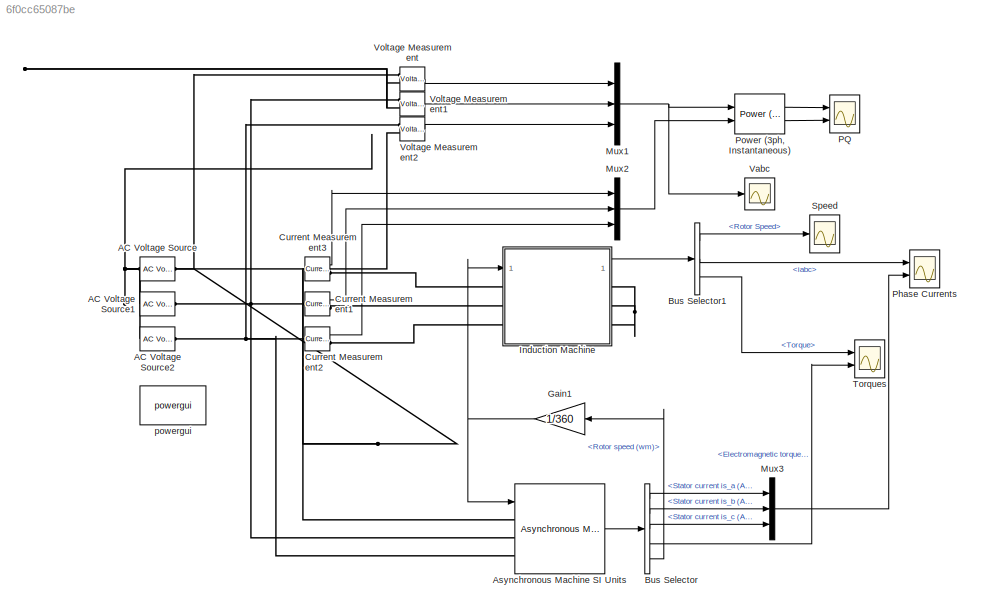
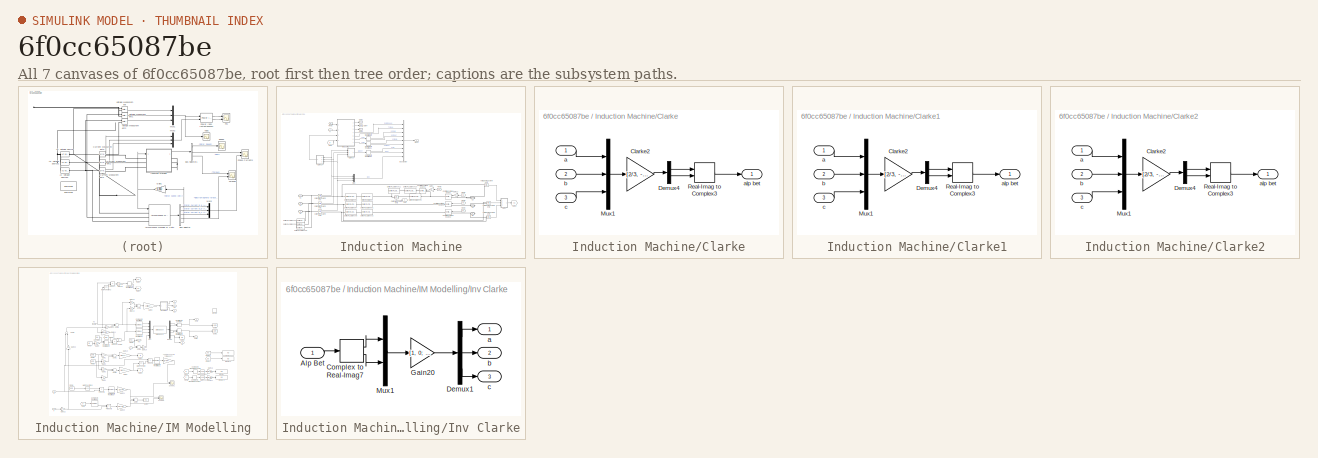
[diagram: thumbnail index - all 7 canvases of the model, root first then tree order]
MODEL slx_6f0cc65087be
KIND model
CONFIG AbsTol = auto
CONFIG FixedStep = 2e-6
CONFIG MaxStep = 2e-6
CONFIG MinStep = auto
CONFIG RelTol = 1e-6
CONFIG SampleTimeConstraint = Unconstrained
CONFIG Solver = VariableStepAuto
CONFIG SolverMode = Auto
CONFIG SolverName = VariableStepAuto
CONFIG StartTime = 0.0
CONFIG StopTime = 1.5
BLOCK [Reference] AC Voltage Source  REF=powerlib/Electrical
Sources/AC Voltage Source
  Ports = [0, 0, 0, 0, 0, 1, 1]
  SourceBlock = powerlib/Electrical\nSources/AC Voltage Source
  SourceType = AC Voltage Source
BLOCK [Reference] AC Voltage Source1  REF=powerlib/Electrical
Sources/AC Voltage Source
  Ports = [0, 0, 0, 0, 0, 1, 1]
  SourceBlock = powerlib/Electrical\nSources/AC Voltage Source
  SourceType = AC Voltage Source
BLOCK [Reference] AC Voltage Source2  REF=powerlib/Electrical
Sources/AC Voltage Source
  Ports = [0, 0, 0, 0, 0, 1, 1]
  SourceBlock = powerlib/Electrical\nSources/AC Voltage Source
  SourceType = AC Voltage Source
BLOCK [Reference] Asynchronous Machine SI Units  REF=powerlib/Machines/Asynchronous Machine
SI Units
  Ports = [1, 1, 0, 0, 0, 3]
  SourceBlock = powerlib/Machines/Asynchronous Machine\nSI Units
  SourceType = Asynchronous Machine
BLOCK [BusSelector] Bus Selector
  OutputSignals = Stator measurements.Stator current is_a (A),Stator measurements.Stator current is_b (A),Stator measurements.Stator current is_c (A),Mechanical.Electromagnetic torque Te (N*m),Mechanical.Rotor speed (wm)
  Ports = [1, 5]
BLOCK [BusSelector] Bus Selector1
  OutputSignals = Rotor Speed,iabc,Torque
  Ports = [1, 3]
BLOCK [Reference] Current Measurement1  REF=powerlib/Measurements/Current Measurement
  Ports = [0, 1, 0, 0, 0, 1, 1]
  SourceBlock = powerlib/Measurements/Current Measurement
  SourceType = Current Measurement
BLOCK [Reference] Current Measurement2  REF=powerlib/Measurements/Current Measurement
  Ports = [0, 1, 0, 0, 0, 1, 1]
  SourceBlock = powerlib/Measurements/Current Measurement
  SourceType = Current Measurement
BLOCK [Reference] Current Measurement3  REF=powerlib/Measurements/Current Measurement
  Ports = [0, 1, 0, 0, 0, 1, 1]
  SourceBlock = powerlib/Measurements/Current Measurement
  SourceType = Current Measurement
BLOCK [Gain] Gain1
  Gain = 1/360
  OutDataTypeStr = Inherit: Inherit via internal rule
  ParamDataTypeStr = Inherit: Inherit via internal rule
  SaturateOnIntegerOverflow = off
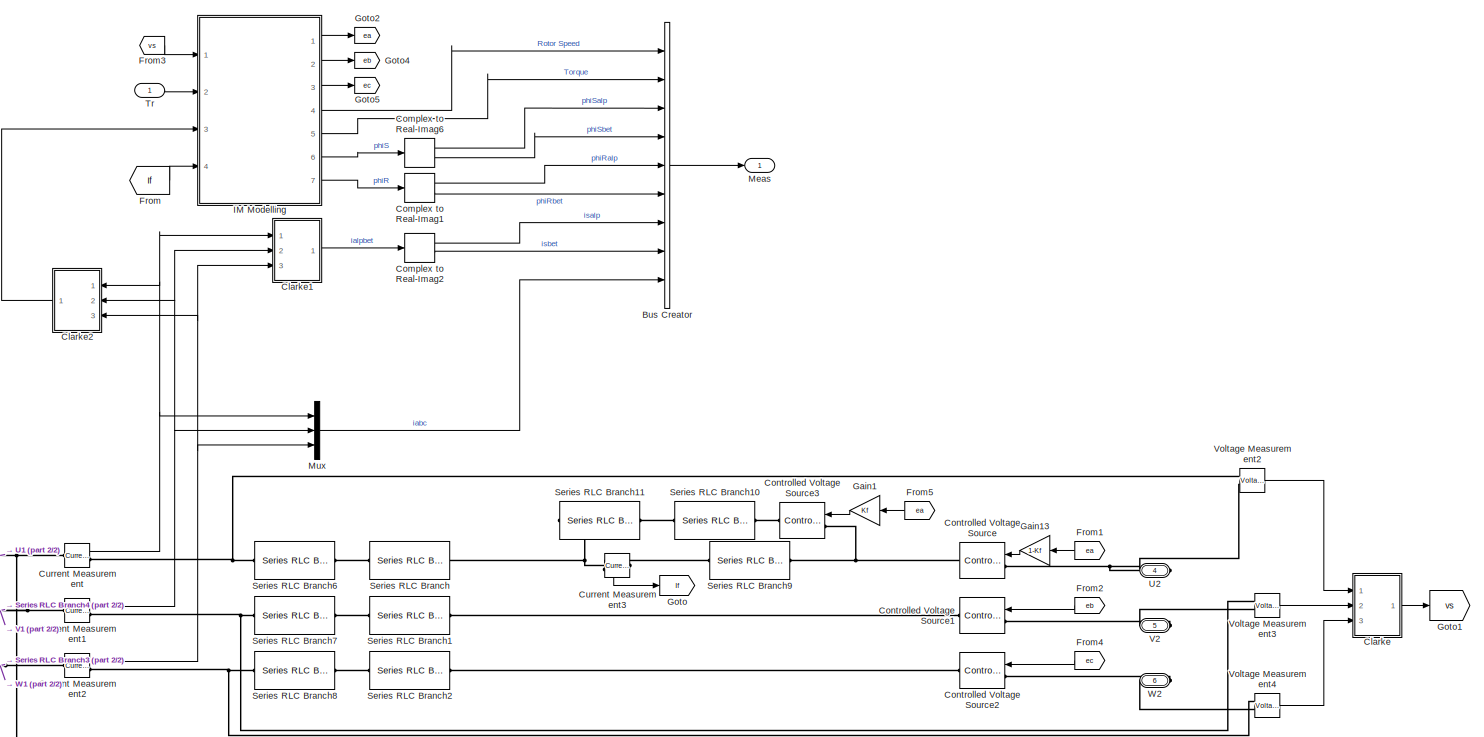
[diagram: Induction Machine - part 1/2, most of the canvas]
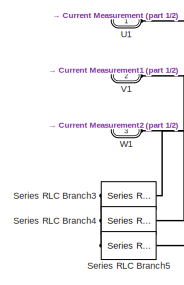
[diagram: Induction Machine - part 2/2, bottom left region]
BLOCK [SubSystem] Induction Machine
  Ports = [1, 1, 0, 0, 0, 3, 3]
  RequestExecContextInheritance = off
  Variant = off
BLOCK [BusCreator] Induction Machine/Bus Creator
  DisplayOption = bar
  InheritFromInputs = on
  Inputs = 9
  Ports = [9, 1]
BLOCK [SubSystem] Induction Machine/Clarke
  Ports = [3, 1]
  RequestExecContextInheritance = off
  Variant = off
BLOCK [Gain] Induction Machine/Clarke/Clarke2
  Gain = [2/3, -1/3, -1/3; 0, sqrt(3)/3, -sqrt(3)/3 ]
  Multiplication = Matrix(K*u)
  OutDataTypeStr = Inherit: Inherit via internal rule
  ParamDataTypeStr = Inherit: Inherit via internal rule
  SaturateOnIntegerOverflow = off
BLOCK [Demux] Induction Machine/Clarke/Demux4
  DisplayOption = bar
  Outputs = 2
  Ports = [1, 2]
BLOCK [Mux] Induction Machine/Clarke/Mux1
  DisplayOption = bar
  Inputs = 3
  Ports = [3, 1]
BLOCK [RealImagToComplex] Induction Machine/Clarke/Real-Imag to Complex3
  Ports = [2, 1]
BLOCK [Inport] Induction Machine/Clarke/a
  IconDisplay = Port number
BLOCK [Outport] Induction Machine/Clarke/alp bet
  IconDisplay = Port number
BLOCK [Inport] Induction Machine/Clarke/b
  IconDisplay = Port number
  Port = 2
BLOCK [Inport] Induction Machine/Clarke/c
  IconDisplay = Port number
  Port = 3
BLOCK [SubSystem] Induction Machine/Clarke1
  Ports = [3, 1]
  RequestExecContextInheritance = off
  Variant = off
BLOCK [Gain] Induction Machine/Clarke1/Clarke2
  Gain = [2/3, -1/3, -1/3; 0, sqrt(3)/3, -sqrt(3)/3 ]
  Multiplication = Matrix(K*u)
  OutDataTypeStr = Inherit: Inherit via internal rule
  ParamDataTypeStr = Inherit: Inherit via internal rule
  SaturateOnIntegerOverflow = off
BLOCK [Demux] Induction Machine/Clarke1/Demux4
  DisplayOption = bar
  Outputs = 2
  Ports = [1, 2]
BLOCK [Mux] Induction Machine/Clarke1/Mux1
  DisplayOption = bar
  Inputs = 3
  Ports = [3, 1]
BLOCK [RealImagToComplex] Induction Machine/Clarke1/Real-Imag to Complex3
  Ports = [2, 1]
BLOCK [Inport] Induction Machine/Clarke1/a
  IconDisplay = Port number
BLOCK [Outport] Induction Machine/Clarke1/alp bet
  IconDisplay = Port number
BLOCK [Inport] Induction Machine/Clarke1/b
  IconDisplay = Port number
  Port = 2
BLOCK [Inport] Induction Machine/Clarke1/c
  IconDisplay = Port number
  Port = 3
BLOCK [SubSystem] Induction Machine/Clarke2
  Ports = [3, 1]
  RequestExecContextInheritance = off
  Variant = off
BLOCK [Gain] Induction Machine/Clarke2/Clarke2
  Gain = [2/3, -1/3, -1/3; 0, sqrt(3)/3, -sqrt(3)/3 ]
  Multiplication = Matrix(K*u)
  OutDataTypeStr = Inherit: Inherit via internal rule
  ParamDataTypeStr = Inherit: Inherit via internal rule
  SaturateOnIntegerOverflow = off
BLOCK [Demux] Induction Machine/Clarke2/Demux4
  DisplayOption = bar
  Outputs = 2
  Ports = [1, 2]
BLOCK [Mux] Induction Machine/Clarke2/Mux1
  DisplayOption = bar
  Inputs = 3
  Ports = [3, 1]
BLOCK [RealImagToComplex] Induction Machine/Clarke2/Real-Imag to Complex3
  Ports = [2, 1]
BLOCK [Inport] Induction Machine/Clarke2/a
  IconDisplay = Port number
BLOCK [Outport] Induction Machine/Clarke2/alp bet
  IconDisplay = Port number
BLOCK [Inport] Induction Machine/Clarke2/b
  IconDisplay = Port number
  Port = 2
BLOCK [Inport] Induction Machine/Clarke2/c
  IconDisplay = Port number
  Port = 3
BLOCK [ComplexToRealImag] Induction Machine/Complex to Real-Imag1
  Ports = [1, 2]
BLOCK [ComplexToRealImag] Induction Machine/Complex to Real-Imag2
  Ports = [1, 2]
BLOCK [ComplexToRealImag] Induction Machine/Complex to Real-Imag6
  Ports = [1, 2]
BLOCK [Reference] Induction Machine/Controlled Voltage Source  REF=powerlib/Electrical
Sources/Controlled Voltage Source
  Ports = [1, 0, 0, 0, 0, 1, 1]
  SourceBlock = powerlib/Electrical\nSources/Controlled Voltage Source
  SourceType = Controlled Voltage Source
BLOCK [Reference] Induction Machine/Controlled Voltage Source1  REF=powerlib/Electrical
Sources/Controlled Voltage Source
  Ports = [1, 0, 0, 0, 0, 1, 1]
  SourceBlock = powerlib/Electrical\nSources/Controlled Voltage Source
  SourceType = Controlled Voltage Source
BLOCK [Reference] Induction Machine/Controlled Voltage Source2  REF=powerlib/Electrical
Sources/Controlled Voltage Source
  Ports = [1, 0, 0, 0, 0, 1, 1]
  SourceBlock = powerlib/Electrical\nSources/Controlled Voltage Source
  SourceType = Controlled Voltage Source
BLOCK [Reference] Induction Machine/Controlled Voltage Source3  REF=powerlib/Electrical
Sources/Controlled Voltage Source
  Ports = [1, 0, 0, 0, 0, 1, 1]
  SourceBlock = powerlib/Electrical\nSources/Controlled Voltage Source
  SourceType = Controlled Voltage Source
BLOCK [Reference] Induction Machine/Current Measurement  REF=powerlib/Measurements/Current Measurement
  Ports = [0, 1, 0, 0, 0, 1, 1]
  SourceBlock = powerlib/Measurements/Current Measurement
  SourceType = Current Measurement
BLOCK [Reference] Induction Machine/Current Measurement1  REF=powerlib/Measurements/Current Measurement
  Ports = [0, 1, 0, 0, 0, 1, 1]
  SourceBlock = powerlib/Measurements/Current Measurement
  SourceType = Current Measurement
BLOCK [Reference] Induction Machine/Current Measurement2  REF=powerlib/Measurements/Current Measurement
  Ports = [0, 1, 0, 0, 0, 1, 1]
  SourceBlock = powerlib/Measurements/Current Measurement
  SourceType = Current Measurement
BLOCK [Reference] Induction Machine/Current Measurement3  REF=powerlib/Measurements/Current Measurement
  Ports = [0, 1, 0, 0, 0, 1, 1]
  SourceBlock = powerlib/Measurements/Current Measurement
  SourceType = Current Measurement
BLOCK [From] Induction Machine/From
  GotoTag = If
BLOCK [From] Induction Machine/From1
  GotoTag = ea
BLOCK [From] Induction Machine/From2
  GotoTag = eb
BLOCK [From] Induction Machine/From3
  GotoTag = vs
BLOCK [From] Induction Machine/From4
  GotoTag = ec
BLOCK [From] Induction Machine/From5
  GotoTag = ea
BLOCK [Gain] Induction Machine/Gain1
  Gain = Kf
  OutDataTypeStr = Inherit: Inherit via internal rule
  ParamDataTypeStr = Inherit: Inherit via internal rule
  SaturateOnIntegerOverflow = off
BLOCK [Gain] Induction Machine/Gain13
  Gain = 1-Kf
  OutDataTypeStr = Inherit: Inherit via internal rule
  ParamDataTypeStr = Inherit: Inherit via internal rule
  SaturateOnIntegerOverflow = off
BLOCK [Goto] Induction Machine/Goto
  GotoTag = If
BLOCK [Goto] Induction Machine/Goto1
  GotoTag = vs
BLOCK [Goto] Induction Machine/Goto2
  GotoTag = ea
BLOCK [Goto] Induction Machine/Goto4
  GotoTag = eb
BLOCK [Goto] Induction Machine/Goto5
  GotoTag = ec
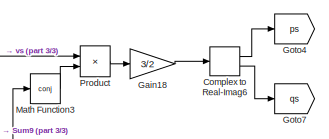
[diagram: Induction Machine/IM Modelling - part 1/3, top center region]
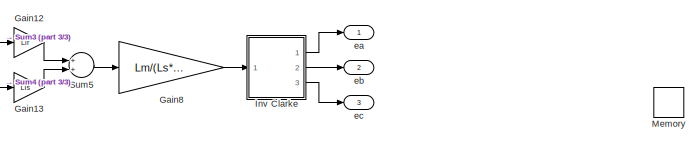
[diagram: Induction Machine/IM Modelling - part 2/3, top center region]
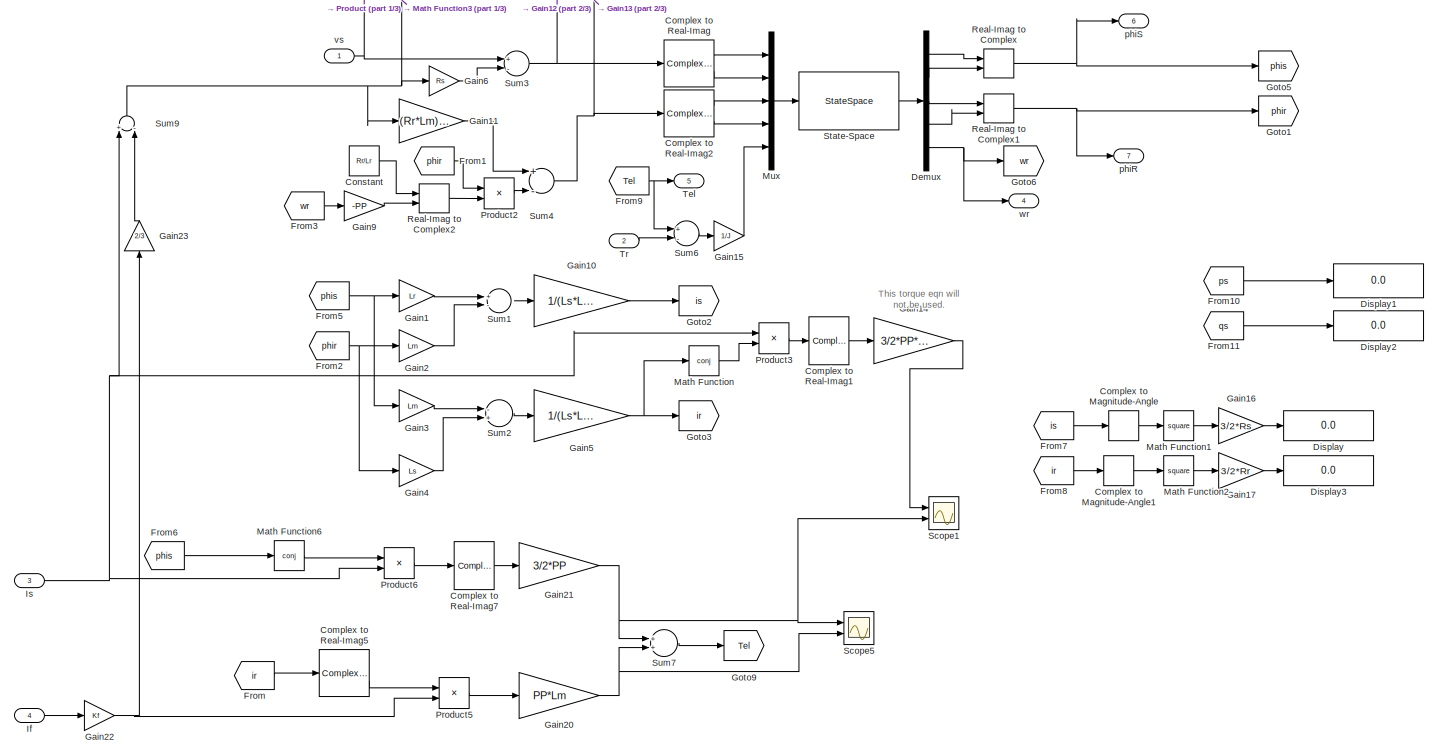
[diagram: Induction Machine/IM Modelling - part 3/3, full width, middle band]
BLOCK [SubSystem] Induction Machine/IM Modelling
  Ports = [4, 7]
  RequestExecContextInheritance = off
  Variant = off
BLOCK [ComplexToMagnitudeAngle] Induction Machine/IM Modelling/Complex to Magnitude-Angle
  Output = Magnitude
  Ports = [1, 1]
BLOCK [ComplexToMagnitudeAngle] Induction Machine/IM Modelling/Complex to Magnitude-Angle1
  Output = Magnitude
  Ports = [1, 1]
BLOCK [ComplexToRealImag] Induction Machine/IM Modelling/Complex to Real-Imag
  Ports = [1, 2]
BLOCK [ComplexToRealImag] Induction Machine/IM Modelling/Complex to Real-Imag1
  Output = Imag
  Ports = [1, 1]
BLOCK [ComplexToRealImag] Induction Machine/IM Modelling/Complex to Real-Imag2
  Ports = [1, 2]
BLOCK [ComplexToRealImag] Induction Machine/IM Modelling/Complex to Real-Imag5
  Ports = [1, 2]
BLOCK [ComplexToRealImag] Induction Machine/IM Modelling/Complex to Real-Imag6
  Ports = [1, 2]
BLOCK [ComplexToRealImag] Induction Machine/IM Modelling/Complex to Real-Imag7
  Output = Imag
  Ports = [1, 1]
BLOCK [Constant] Induction Machine/IM Modelling/Constant
  Value = Rr/Lr
BLOCK [Demux] Induction Machine/IM Modelling/Demux
  DisplayOption = bar
  Outputs = 5
  Ports = [1, 5]
BLOCK [Display] Induction Machine/IM Modelling/Display
  Decimation = 1
  Ports = [1]
BLOCK [Display] Induction Machine/IM Modelling/Display1
  Decimation = 1
  Format = long
  Ports = [1]
BLOCK [Display] Induction Machine/IM Modelling/Display2
  Decimation = 1
  Ports = [1]
BLOCK [Display] Induction Machine/IM Modelling/Display3
  Decimation = 1
  Ports = [1]
BLOCK [From] Induction Machine/IM Modelling/From
  GotoTag = ir
BLOCK [From] Induction Machine/IM Modelling/From1
  GotoTag = phir
BLOCK [From] Induction Machine/IM Modelling/From10
  GotoTag = ps
BLOCK [From] Induction Machine/IM Modelling/From11
  GotoTag = qs
BLOCK [From] Induction Machine/IM Modelling/From2
  GotoTag = phir
BLOCK [From] Induction Machine/IM Modelling/From3
  GotoTag = wr
BLOCK [From] Induction Machine/IM Modelling/From5
  GotoTag = phis
BLOCK [From] Induction Machine/IM Modelling/From6
  GotoTag = phis
BLOCK [From] Induction Machine/IM Modelling/From7
  GotoTag = is
BLOCK [From] Induction Machine/IM Modelling/From8
  GotoTag = ir
BLOCK [From] Induction Machine/IM Modelling/From9
  GotoTag = Tel
BLOCK [Gain] Induction Machine/IM Modelling/Gain1
  Gain = Lr
  OutDataTypeStr = Inherit: Inherit via internal rule
  ParamDataTypeStr = Inherit: Inherit via internal rule
  SaturateOnIntegerOverflow = off
BLOCK [Gain] Induction Machine/IM Modelling/Gain10
  Gain = 1/(Ls*Lr-Lm^2)
  OutDataTypeStr = Inherit: Inherit via internal rule
  ParamDataTypeStr = Inherit: Inherit via internal rule
  SaturateOnIntegerOverflow = off
BLOCK [Gain] Induction Machine/IM Modelling/Gain11
  Gain = (Rr*Lm)/Lr
  OutDataTypeStr = Inherit: Inherit via internal rule
  ParamDataTypeStr = Inherit: Inherit via internal rule
  SaturateOnIntegerOverflow = off
BLOCK [Gain] Induction Machine/IM Modelling/Gain12
  Gain = Llr
  OutDataTypeStr = Inherit: Inherit via internal rule
  ParamDataTypeStr = Inherit: Inherit via internal rule
  SaturateOnIntegerOverflow = off
BLOCK [Gain] Induction Machine/IM Modelling/Gain13
  Gain = Lls
  OutDataTypeStr = Inherit: Inherit via internal rule
  ParamDataTypeStr = Inherit: Inherit via internal rule
  SaturateOnIntegerOverflow = off
BLOCK [Gain] Induction Machine/IM Modelling/Gain14
  Gain = 3/2*PP*Lm
  OutDataTypeStr = Inherit: Inherit via internal rule
  ParamDataTypeStr = Inherit: Inherit via internal rule
  SaturateOnIntegerOverflow = off
BLOCK [Gain] Induction Machine/IM Modelling/Gain15
  Gain = 1/J
  OutDataTypeStr = Inherit: Inherit via internal rule
  ParamDataTypeStr = Inherit: Inherit via internal rule
  SaturateOnIntegerOverflow = off
BLOCK [Gain] Induction Machine/IM Modelling/Gain16
  Gain = 3/2*Rs
  OutDataTypeStr = Inherit: Inherit via internal rule
  ParamDataTypeStr = Inherit: Inherit via internal rule
  SaturateOnIntegerOverflow = off
BLOCK [Gain] Induction Machine/IM Modelling/Gain17
  Gain = 3/2*Rr
  OutDataTypeStr = Inherit: Inherit via internal rule
  ParamDataTypeStr = Inherit: Inherit via internal rule
  SaturateOnIntegerOverflow = off
BLOCK [Gain] Induction Machine/IM Modelling/Gain18
  Gain = 3/2
  OutDataTypeStr = Inherit: Inherit via internal rule
  ParamDataTypeStr = Inherit: Inherit via internal rule
  SaturateOnIntegerOverflow = off
BLOCK [Gain] Induction Machine/IM Modelling/Gain2
  Gain = Lm
  OutDataTypeStr = Inherit: Inherit via internal rule
  ParamDataTypeStr = Inherit: Inherit via internal rule
  SaturateOnIntegerOverflow = off
BLOCK [Gain] Induction Machine/IM Modelling/Gain20
  Gain = PP*Lm
  OutDataTypeStr = Inherit: Inherit via internal rule
  ParamDataTypeStr = Inherit: Inherit via internal rule
  SaturateOnIntegerOverflow = off
BLOCK [Gain] Induction Machine/IM Modelling/Gain21
  Gain = 3/2*PP
  OutDataTypeStr = Inherit: Inherit via internal rule
  ParamDataTypeStr = Inherit: Inherit via internal rule
  SaturateOnIntegerOverflow = off
BLOCK [Gain] Induction Machine/IM Modelling/Gain22
  Gain = Kf
  OutDataTypeStr = Inherit: Inherit via internal rule
  ParamDataTypeStr = Inherit: Inherit via internal rule
  SaturateOnIntegerOverflow = off
BLOCK [Gain] Induction Machine/IM Modelling/Gain23
  Gain = 2/3
  OutDataTypeStr = Inherit: Inherit via internal rule
  ParamDataTypeStr = Inherit: Inherit via internal rule
  SaturateOnIntegerOverflow = off
BLOCK [Gain] Induction Machine/IM Modelling/Gain3
  Gain = Lm
  OutDataTypeStr = Inherit: Inherit via internal rule
  ParamDataTypeStr = Inherit: Inherit via internal rule
  SaturateOnIntegerOverflow = off
BLOCK [Gain] Induction Machine/IM Modelling/Gain4
  Gain = Ls
  OutDataTypeStr = Inherit: Inherit via internal rule
  ParamDataTypeStr = Inherit: Inherit via internal rule
  SaturateOnIntegerOverflow = off
BLOCK [Gain] Induction Machine/IM Modelling/Gain5
  Gain = 1/(Ls*Lr-Lm^2)
  OutDataTypeStr = Inherit: Inherit via internal rule
  ParamDataTypeStr = Inherit: Inherit via internal rule
  SaturateOnIntegerOverflow = off
BLOCK [Gain] Induction Machine/IM Modelling/Gain6
  Gain = Rs
  OutDataTypeStr = Inherit: Inherit via internal rule
  ParamDataTypeStr = Inherit: Inherit via internal rule
  SaturateOnIntegerOverflow = off
BLOCK [Gain] Induction Machine/IM Modelling/Gain8
  Gain = Lm/(Ls*Lr-Lm^2)
  OutDataTypeStr = Inherit: Inherit via internal rule
  ParamDataTypeStr = Inherit: Inherit via internal rule
  SaturateOnIntegerOverflow = off
BLOCK [Gain] Induction Machine/IM Modelling/Gain9
  Gain = -PP
  OutDataTypeStr = Inherit: Inherit via internal rule
  ParamDataTypeStr = Inherit: Inherit via internal rule
  SaturateOnIntegerOverflow = off
BLOCK [Goto] Induction Machine/IM Modelling/Goto1
  GotoTag = phir
BLOCK [Goto] Induction Machine/IM Modelling/Goto2
  GotoTag = is
BLOCK [Goto] Induction Machine/IM Modelling/Goto3
  GotoTag = ir
BLOCK [Goto] Induction Machine/IM Modelling/Goto4
  GotoTag = ps
BLOCK [Goto] Induction Machine/IM Modelling/Goto5
  GotoTag = phis
BLOCK [Goto] Induction Machine/IM Modelling/Goto6
  GotoTag = wr
BLOCK [Goto] Induction Machine/IM Modelling/Goto7
  GotoTag = qs
BLOCK [Goto] Induction Machine/IM Modelling/Goto9
  GotoTag = Tel
BLOCK [Inport] Induction Machine/IM Modelling/If
  IconDisplay = Port number
  Port = 4
BLOCK [SubSystem] Induction Machine/IM Modelling/Inv Clarke
  Ports = [1, 3]
  RequestExecContextInheritance = off
  Variant = off
BLOCK [Inport] Induction Machine/IM Modelling/Inv Clarke/Alp Bet
  IconDisplay = Port number
BLOCK [ComplexToRealImag] Induction Machine/IM Modelling/Inv Clarke/Complex to Real-Imag7
  Ports = [1, 2]
BLOCK [Demux] Induction Machine/IM Modelling/Inv Clarke/Demux1
  DisplayOption = bar
  Outputs = 3
  Ports = [1, 3]
BLOCK [Gain] Induction Machine/IM Modelling/Inv Clarke/Gain20
  Gain = [1, 0; -1/2, sqrt(3)/2; -1/2, -sqrt(3)/2]
  Multiplication = Matrix(K*u)
  OutDataTypeStr = Inherit: Inherit via internal rule
  ParamDataTypeStr = Inherit: Inherit via internal rule
  SaturateOnIntegerOverflow = off
BLOCK [Mux] Induction Machine/IM Modelling/Inv Clarke/Mux1
  DisplayOption = bar
  Inputs = 2
  Ports = [2, 1]
BLOCK [Outport] Induction Machine/IM Modelling/Inv Clarke/a
  IconDisplay = Port number
BLOCK [Outport] Induction Machine/IM Modelling/Inv Clarke/b
  IconDisplay = Port number
  Port = 2
BLOCK [Outport] Induction Machine/IM Modelling/Inv Clarke/c
  IconDisplay = Port number
  Port = 3
BLOCK [Inport] Induction Machine/IM Modelling/Is
  IconDisplay = Port number
  Port = 3
BLOCK [Math] Induction Machine/IM Modelling/Math Function
  Operator = conj
  Ports = [1, 1]
BLOCK [Math] Induction Machine/IM Modelling/Math Function1
  Operator = square
  Ports = [1, 1]
BLOCK [Math] Induction Machine/IM Modelling/Math Function2
  Operator = square
  Ports = [1, 1]
BLOCK [Math] Induction Machine/IM Modelling/Math Function3
  Operator = conj
  Ports = [1, 1]
BLOCK [Math] Induction Machine/IM Modelling/Math Function6
  Operator = conj
  Ports = [1, 1]
BLOCK [Memory] Induction Machine/IM Modelling/Memory
  InheritSampleTime = on
BLOCK [Mux] Induction Machine/IM Modelling/Mux
  DisplayOption = bar
  Inputs = 5
  Ports = [5, 1]
BLOCK [Product] Induction Machine/IM Modelling/Product
  InputSameDT = off
  OutDataTypeStr = Inherit: Inherit via internal rule
  Ports = [2, 1]
  SaturateOnIntegerOverflow = off
BLOCK [Product] Induction Machine/IM Modelling/Product2
  InputSameDT = off
  OutDataTypeStr = Inherit: Inherit via internal rule
  Ports = [2, 1]
  SaturateOnIntegerOverflow = off
BLOCK [Product] Induction Machine/IM Modelling/Product3
  InputSameDT = off
  OutDataTypeStr = Inherit: Inherit via internal rule
  Ports = [2, 1]
  SaturateOnIntegerOverflow = off
BLOCK [Product] Induction Machine/IM Modelling/Product5
  InputSameDT = off
  OutDataTypeStr = Inherit: Inherit via internal rule
  Ports = [2, 1]
  SaturateOnIntegerOverflow = off
BLOCK [Product] Induction Machine/IM Modelling/Product6
  InputSameDT = off
  OutDataTypeStr = Inherit: Inherit via internal rule
  Ports = [2, 1]
  SaturateOnIntegerOverflow = off
BLOCK [RealImagToComplex] Induction Machine/IM Modelling/Real-Imag to Complex
  Ports = [2, 1]
BLOCK [RealImagToComplex] Induction Machine/IM Modelling/Real-Imag to Complex1
  Ports = [2, 1]
BLOCK [RealImagToComplex] Induction Machine/IM Modelling/Real-Imag to Complex2
  Ports = [2, 1]
BLOCK [Scope] Induction Machine/IM Modelling/Scope1
  NumInputPorts = 2
  Ports = [2]
  ScopeSpecificationString = Simulink.scopes.TimeScopeBlockCfg('CurrentConfiguration', extmgr.ConfigurationSet(extmgr.Configuration('Core','General UI',true),extmgr.Configuration('Core','Source UI',true),extmgr.Configuration('Sources','WiredSimulink',true,'DataLoggingVariableName','ScopeData1'),extmgr.Configuration('Visuals','Time Domain',true,'SerializedDisplays',{struct('MinYLimReal','0.22767','MaxYLimReal','1.5743','YLabel...<+1800ch>
BLOCK [Scope] Induction Machine/IM Modelling/Scope5
  NumInputPorts = 2
  Ports = [2]
  ScopeSpecificationString = Simulink.scopes.TimeScopeBlockCfg('CurrentConfiguration', extmgr.ConfigurationSet(extmgr.Configuration('Core','General UI',true),extmgr.Configuration('Core','Source UI',true),extmgr.Configuration('Sources','WiredSimulink',true,'DataLoggingVariableName','ScopeData5'),extmgr.Configuration('Visuals','Time Domain',true,'SerializedDisplays',{struct('MinYLimReal','-2.82531','MaxYLimReal','13.88767','YLa...<+1449ch>
BLOCK [StateSpace] Induction Machine/IM Modelling/State-Space
  A = [0,0,0,0,0; 0,0,0,0,0; 0,0,0,0,0; 0,0,0,0,0; 0,0,0,0,0]
  B = [1,0,0,0,0; 0,1,0,0,0; 0,0,1,0,0; 0,0,0,1,0; 0,0,0,0,1]
  C = [1,0,0,0,0; 0,1,0,0,0; 0,0,1,0,0; 0,0,0,1,0; 0,0,0,0,1]
  D = [0,0,0,0,0; 0,0,0,0,0; 0,0,0,0,0; 0,0,0,0,0; 0,0,0,0,0]
  Ports = [1, 1]
  X0 = [0,0,0,0,0]
BLOCK [Sum] Induction Machine/IM Modelling/Sum1
  InputSameDT = off
  Inputs = +-
  OutDataTypeStr = Inherit: Inherit via internal rule
  Ports = [2, 1]
  SaturateOnIntegerOverflow = off
BLOCK [Sum] Induction Machine/IM Modelling/Sum2
  InputSameDT = off
  Inputs = -+
  OutDataTypeStr = Inherit: Inherit via internal rule
  Ports = [2, 1]
  SaturateOnIntegerOverflow = off
BLOCK [Sum] Induction Machine/IM Modelling/Sum3
  InputSameDT = off
  Inputs = +-
  OutDataTypeStr = Inherit: Inherit via internal rule
  Ports = [2, 1]
  SaturateOnIntegerOverflow = off
BLOCK [Sum] Induction Machine/IM Modelling/Sum4
  InputSameDT = off
  Inputs = +-
  OutDataTypeStr = Inherit: Inherit via internal rule
  Ports = [2, 1]
  SaturateOnIntegerOverflow = off
BLOCK [Sum] Induction Machine/IM Modelling/Sum5
  InputSameDT = off
  OutDataTypeStr = Inherit: Inherit via internal rule
  Ports = [2, 1]
  SaturateOnIntegerOverflow = off
BLOCK [Sum] Induction Machine/IM Modelling/Sum6
  InputSameDT = off
  Inputs = +-
  OutDataTypeStr = Inherit: Inherit via internal rule
  Ports = [2, 1]
  SaturateOnIntegerOverflow = off
BLOCK [Sum] Induction Machine/IM Modelling/Sum7
  InputSameDT = off
  OutDataTypeStr = Inherit: Inherit via internal rule
  Ports = [2, 1]
  SaturateOnIntegerOverflow = off
BLOCK [Sum] Induction Machine/IM Modelling/Sum9
  InputSameDT = off
  Inputs = +-
  OutDataTypeStr = Inherit: Inherit via internal rule
  Ports = [2, 1]
  SaturateOnIntegerOverflow = off
BLOCK [Outport] Induction Machine/IM Modelling/Tel
  IconDisplay = Port number
  Port = 5
BLOCK [Inport] Induction Machine/IM Modelling/Tr
  IconDisplay = Port number
  Port = 2
BLOCK [Outport] Induction Machine/IM Modelling/ea
  IconDisplay = Port number
BLOCK [Outport] Induction Machine/IM Modelling/eb
  IconDisplay = Port number
  Port = 2
BLOCK [Outport] Induction Machine/IM Modelling/ec
  IconDisplay = Port number
  Port = 3
BLOCK [Outport] Induction Machine/IM Modelling/phiR
  IconDisplay = Port number
  Port = 7
BLOCK [Outport] Induction Machine/IM Modelling/phiS
  IconDisplay = Port number
  Port = 6
BLOCK [Inport] Induction Machine/IM Modelling/vs
  IconDisplay = Port number
BLOCK [Outport] Induction Machine/IM Modelling/wr
  IconDisplay = Port number
  Port = 4
BLOCK [Outport] Induction Machine/Meas
  IconDisplay = Port number
BLOCK [Mux] Induction Machine/Mux
  DisplayOption = bar
  Inputs = 3
  Ports = [3, 1]
BLOCK [Reference] Induction Machine/Series RLC Branch  REF=powerlib/Elements/Series RLC Branch
  Ports = [0, 0, 0, 0, 0, 1, 1]
  SourceBlock = powerlib/Elements/Series RLC Branch
  SourceType = Series RLC Branch
BLOCK [Reference] Induction Machine/Series RLC Branch1  REF=powerlib/Elements/Series RLC Branch
  Ports = [0, 0, 0, 0, 0, 1, 1]
  SourceBlock = powerlib/Elements/Series RLC Branch
  SourceType = Series RLC Branch
BLOCK [Reference] Induction Machine/Series RLC Branch10  REF=powerlib/Elements/Series RLC Branch
  Ports = [0, 0, 0, 0, 0, 1, 1]
  SourceBlock = powerlib/Elements/Series RLC Branch
  SourceType = Series RLC Branch
BLOCK [Reference] Induction Machine/Series RLC Branch11  REF=powerlib/Elements/Series RLC Branch
  Ports = [0, 0, 0, 0, 0, 1, 1]
  SourceBlock = powerlib/Elements/Series RLC Branch
  SourceType = Series RLC Branch
BLOCK [Reference] Induction Machine/Series RLC Branch2  REF=powerlib/Elements/Series RLC Branch
  Ports = [0, 0, 0, 0, 0, 1, 1]
  SourceBlock = powerlib/Elements/Series RLC Branch
  SourceType = Series RLC Branch
BLOCK [Reference] Induction Machine/Series RLC Branch3  REF=powerlib/Elements/Series RLC Branch
  Ports = [0, 0, 0, 0, 0, 1, 1]
  SourceBlock = powerlib/Elements/Series RLC Branch
  SourceType = Series RLC Branch
BLOCK [Reference] Induction Machine/Series RLC Branch4  REF=powerlib/Elements/Series RLC Branch
  Ports = [0, 0, 0, 0, 0, 1, 1]
  SourceBlock = powerlib/Elements/Series RLC Branch
  SourceType = Series RLC Branch
BLOCK [Reference] Induction Machine/Series RLC Branch5  REF=powerlib/Elements/Series RLC Branch
  Ports = [0, 0, 0, 0, 0, 1, 1]
  SourceBlock = powerlib/Elements/Series RLC Branch
  SourceType = Series RLC Branch
BLOCK [Reference] Induction Machine/Series RLC Branch6  REF=powerlib/Elements/Series RLC Branch
  Ports = [0, 0, 0, 0, 0, 1, 1]
  SourceBlock = powerlib/Elements/Series RLC Branch
  SourceType = Series RLC Branch
BLOCK [Reference] Induction Machine/Series RLC Branch7  REF=powerlib/Elements/Series RLC Branch
  Ports = [0, 0, 0, 0, 0, 1, 1]
  SourceBlock = powerlib/Elements/Series RLC Branch
  SourceType = Series RLC Branch
BLOCK [Reference] Induction Machine/Series RLC Branch8  REF=powerlib/Elements/Series RLC Branch
  Ports = [0, 0, 0, 0, 0, 1, 1]
  SourceBlock = powerlib/Elements/Series RLC Branch
  SourceType = Series RLC Branch
BLOCK [Reference] Induction Machine/Series RLC Branch9  REF=powerlib/Elements/Series RLC Branch
  Ports = [0, 0, 0, 0, 0, 1, 1]
  SourceBlock = powerlib/Elements/Series RLC Branch
  SourceType = Series RLC Branch
BLOCK [Inport] Induction Machine/Tr
  IconDisplay = Port number
BLOCK [PMIOPort] Induction Machine/U1
  Port = 1
  Side = Left
BLOCK [PMIOPort] Induction Machine/U2
  Port = 4
  Side = Right
BLOCK [PMIOPort] Induction Machine/V1
  Port = 2
  Side = Left
BLOCK [PMIOPort] Induction Machine/V2
  Port = 5
  Side = Right
BLOCK [Reference] Induction Machine/Voltage Measurement2  REF=powerlib/Measurements/Voltage Measurement
  Ports = [0, 1, 0, 0, 0, 2]
  SourceBlock = powerlib/Measurements/Voltage Measurement
  SourceType = Voltage Measurement
BLOCK [Reference] Induction Machine/Voltage Measurement3  REF=powerlib/Measurements/Voltage Measurement
  Ports = [0, 1, 0, 0, 0, 2]
  SourceBlock = powerlib/Measurements/Voltage Measurement
  SourceType = Voltage Measurement
BLOCK [Reference] Induction Machine/Voltage Measurement4  REF=powerlib/Measurements/Voltage Measurement
  Ports = [0, 1, 0, 0, 0, 2]
  SourceBlock = powerlib/Measurements/Voltage Measurement
  SourceType = Voltage Measurement
BLOCK [PMIOPort] Induction Machine/W1
  Port = 3
  Side = Left
BLOCK [PMIOPort] Induction Machine/W2
  Port = 6
  Side = Right
BLOCK [Mux] Mux1
  DisplayOption = bar
  Inputs = 3
  Ports = [3, 1]
BLOCK [Mux] Mux2
  DisplayOption = bar
  Inputs = 3
  Ports = [3, 1]
BLOCK [Mux] Mux3
  DisplayOption = bar
  Inputs = 3
  Ports = [3, 1]
BLOCK [Scope] PQ
  NumInputPorts = 2
  Ports = [2]
  ScopeSpecificationString = Simulink.scopes.TimeScopeBlockCfg('CurrentConfiguration', extmgr.ConfigurationSet(extmgr.Configuration('Core','General UI',true,'FigureColor',[1 1 1]),extmgr.Configuration('Core','Source UI',true),extmgr.Configuration('Sources','WiredSimulink',true,'DataLoggingVariableName','ScopeData1','DataLoggingSaveFormat','Array','DataLoggingDecimation','1','DataLoggingDecimateData',true),extmgr.Configuration...<+1949ch>
BLOCK [Scope] Phase Currents
  NumInputPorts = 2
  Ports = [2]
  ScopeSpecificationString = Simulink.scopes.TimeScopeBlockCfg('CurrentConfiguration', extmgr.ConfigurationSet(extmgr.Configuration('Core','General UI',true,'FigureColor',[1 1 1]),extmgr.Configuration('Core','Source UI',true),extmgr.Configuration('Sources','WiredSimulink',true,'DataLoggingVariableName','pippo1','DataLoggingSaveFormat','Array','DataLoggingDecimation','1','DataLoggingDecimateData',true),extmgr.Configuration('Vi...<+2610ch>
BLOCK [Reference] Power (3ph, Instantaneous)  REF=powerlib_meascontrol/Measurements/Power
(3ph, Instantaneous)
  Ports = [2, 2]
  SourceBlock = powerlib_meascontrol/Measurements/Power\n(3ph, Instantaneous)
  SourceType = Power (3ph, Instantaneous)
BLOCK [Scope] Speed
  Ports = [1]
  ScopeSpecificationString = Simulink.scopes.TimeScopeBlockCfg('CurrentConfiguration', extmgr.ConfigurationSet(extmgr.Configuration('Core','General UI',true),extmgr.Configuration('Core','Source UI',true),extmgr.Configuration('Sources','WiredSimulink',true,'DataLoggingVariableName','ScopeData2','DataLoggingSaveFormat','Array','DataLoggingDecimation','1','DataLoggingDecimateData',true),extmgr.Configuration('Visuals','Time Domai...<+1570ch>
BLOCK [Scope] Torques
  NumInputPorts = 2
  Ports = [2]
  ScopeSpecificationString = Simulink.scopes.TimeScopeBlockCfg('CurrentConfiguration', extmgr.ConfigurationSet(extmgr.Configuration('Core','General UI',true,'FigureColor',[1 1 1]),extmgr.Configuration('Core','Source UI',true),extmgr.Configuration('Sources','WiredSimulink',true,'DataLoggingVariableName','ScopeData1','DataLoggingSaveFormat','Array','DataLoggingDecimation','1','DataLoggingDecimateData',true),extmgr.Configuration...<+1851ch>
BLOCK [Scope] Vabc
  Ports = [1]
  ScopeSpecificationString = Simulink.scopes.TimeScopeBlockCfg('CurrentConfiguration', extmgr.ConfigurationSet(extmgr.Configuration('Core','General UI',true),extmgr.Configuration('Core','Source UI',true),extmgr.Configuration('Sources','WiredSimulink',true,'DataLoggingVariableName','ScopeData3','DataLoggingSaveFormat','StructureWithTime','DataLoggingDecimation','1','DataLoggingDecimateData',true),extmgr.Configuration('Visuals'...<+1759ch>
BLOCK [Reference] Voltage Measurement  REF=powerlib/Measurements/Voltage Measurement
  Ports = [0, 1, 0, 0, 0, 2]
  SourceBlock = powerlib/Measurements/Voltage Measurement
  SourceType = Voltage Measurement
BLOCK [Reference] Voltage Measurement1  REF=powerlib/Measurements/Voltage Measurement
  Ports = [0, 1, 0, 0, 0, 2]
  SourceBlock = powerlib/Measurements/Voltage Measurement
  SourceType = Voltage Measurement
BLOCK [Reference] Voltage Measurement2  REF=powerlib/Measurements/Voltage Measurement
  Ports = [0, 1, 0, 0, 0, 2]
  SourceBlock = powerlib/Measurements/Voltage Measurement
  SourceType = Voltage Measurement
BLOCK [Reference] powergui  REF=powerlib/powergui
  Ports = []
  Priority = 1
  SourceBlock = powerlib/powergui
  SourceType = PSB option menu block
  UserDataPersistent = on
ANNOTATION Induction Machine/IM Modelling: This torque eqn will not be used.
LINE Asynchronous Machine SI Units:1 -> Bus Selector:1
LINE Bus Selector1:1 -> Speed:1
LINE Bus Selector1:2 -> Phase Currents:1
LINE Bus Selector1:3 -> Torques:1
LINE Bus Selector:1 -> Mux3:1
LINE Bus Selector:2 -> Mux3:2
LINE Bus Selector:3 -> Mux3:3
LINE Bus Selector:4 -> Torques:2
LINE Bus Selector:5 -> Gain1:1
LINE Current Measurement1:1 -> Mux2:2
LINE Current Measurement2:1 -> Mux2:3
LINE Current Measurement3:1 -> Mux2:1
NET Gain1:1 -> Asynchronous Machine SI Units:1, Induction Machine:1
LINE Induction Machine/Bus Creator:1 -> Induction Machine/Meas:1
LINE Induction Machine/Clarke/Clarke2:1 -> Induction Machine/Clarke/Demux4:1
LINE Induction Machine/Clarke/Demux4:1 -> Induction Machine/Clarke/Real-Imag to Complex3:1
LINE Induction Machine/Clarke/Demux4:2 -> Induction Machine/Clarke/Real-Imag to Complex3:2
LINE Induction Machine/Clarke/Mux1:1 -> Induction Machine/Clarke/Clarke2:1
LINE Induction Machine/Clarke/Real-Imag to Complex3:1 -> Induction Machine/Clarke/alp bet:1
LINE Induction Machine/Clarke/a:1 -> Induction Machine/Clarke/Mux1:1
LINE Induction Machine/Clarke/b:1 -> Induction Machine/Clarke/Mux1:2
LINE Induction Machine/Clarke/c:1 -> Induction Machine/Clarke/Mux1:3
LINE Induction Machine/Clarke1/Clarke2:1 -> Induction Machine/Clarke1/Demux4:1
LINE Induction Machine/Clarke1/Demux4:1 -> Induction Machine/Clarke1/Real-Imag to Complex3:1
LINE Induction Machine/Clarke1/Demux4:2 -> Induction Machine/Clarke1/Real-Imag to Complex3:2
LINE Induction Machine/Clarke1/Mux1:1 -> Induction Machine/Clarke1/Clarke2:1
LINE Induction Machine/Clarke1/Real-Imag to Complex3:1 -> Induction Machine/Clarke1/alp bet:1
LINE Induction Machine/Clarke1/a:1 -> Induction Machine/Clarke1/Mux1:1
LINE Induction Machine/Clarke1/b:1 -> Induction Machine/Clarke1/Mux1:2
LINE Induction Machine/Clarke1/c:1 -> Induction Machine/Clarke1/Mux1:3
LINE Induction Machine/Clarke1:1 -> Induction Machine/Complex to Real-Imag2:1
LINE Induction Machine/Clarke2/Clarke2:1 -> Induction Machine/Clarke2/Demux4:1
LINE Induction Machine/Clarke2/Demux4:1 -> Induction Machine/Clarke2/Real-Imag to Complex3:1
LINE Induction Machine/Clarke2/Demux4:2 -> Induction Machine/Clarke2/Real-Imag to Complex3:2
LINE Induction Machine/Clarke2/Mux1:1 -> Induction Machine/Clarke2/Clarke2:1
LINE Induction Machine/Clarke2/Real-Imag to Complex3:1 -> Induction Machine/Clarke2/alp bet:1
LINE Induction Machine/Clarke2/a:1 -> Induction Machine/Clarke2/Mux1:1
LINE Induction Machine/Clarke2/b:1 -> Induction Machine/Clarke2/Mux1:2
LINE Induction Machine/Clarke2/c:1 -> Induction Machine/Clarke2/Mux1:3
LINE Induction Machine/Clarke2:1 -> Induction Machine/IM Modelling:3
LINE Induction Machine/Clarke:1 -> Induction Machine/Goto1:1
LINE Induction Machine/Complex to Real-Imag1:1 -> Induction Machine/Bus Creator:5
LINE Induction Machine/Complex to Real-Imag1:2 -> Induction Machine/Bus Creator:6
LINE Induction Machine/Complex to Real-Imag2:1 -> Induction Machine/Bus Creator:7
LINE Induction Machine/Complex to Real-Imag2:2 -> Induction Machine/Bus Creator:8
LINE Induction Machine/Complex to Real-Imag6:1 -> Induction Machine/Bus Creator:3
LINE Induction Machine/Complex to Real-Imag6:2 -> Induction Machine/Bus Creator:4
NET Induction Machine/Current Measurement1:1 -> Induction Machine/Clarke1:2, Induction Machine/Clarke2:2, Induction Machine/Mux:2
NET Induction Machine/Current Measurement2:1 -> Induction Machine/Clarke1:3, Induction Machine/Clarke2:3, Induction Machine/Mux:3
LINE Induction Machine/Current Measurement3:1 -> Induction Machine/Goto:1
NET Induction Machine/Current Measurement:1 -> Induction Machine/Clarke1:1, Induction Machine/Clarke2:1, Induction Machine/Mux:1
LINE Induction Machine/From1:1 -> Induction Machine/Gain13:1
LINE Induction Machine/From2:1 -> Induction Machine/Controlled Voltage Source1:1
LINE Induction Machine/From3:1 -> Induction Machine/IM Modelling:1
LINE Induction Machine/From4:1 -> Induction Machine/Controlled Voltage Source2:1
LINE Induction Machine/From5:1 -> Induction Machine/Gain1:1
LINE Induction Machine/From:1 -> Induction Machine/IM Modelling:4
LINE Induction Machine/Gain13:1 -> Induction Machine/Controlled Voltage Source:1
LINE Induction Machine/Gain1:1 -> Induction Machine/Controlled Voltage Source3:1
LINE Induction Machine/IM Modelling/Complex to Magnitude-Angle1:1 -> Induction Machine/IM Modelling/Math Function2:1
LINE Induction Machine/IM Modelling/Complex to Magnitude-Angle:1 -> Induction Machine/IM Modelling/Math Function1:1
LINE Induction Machine/IM Modelling/Complex to Real-Imag1:1 -> Induction Machine/IM Modelling/Gain14:1
LINE Induction Machine/IM Modelling/Complex to Real-Imag2:1 -> Induction Machine/IM Modelling/Mux:3
LINE Induction Machine/IM Modelling/Complex to Real-Imag2:2 -> Induction Machine/IM Modelling/Mux:4
LINE Induction Machine/IM Modelling/Complex to Real-Imag5:2 -> Induction Machine/IM Modelling/Product5:1
LINE Induction Machine/IM Modelling/Complex to Real-Imag6:1 -> Induction Machine/IM Modelling/Goto4:1
LINE Induction Machine/IM Modelling/Complex to Real-Imag6:2 -> Induction Machine/IM Modelling/Goto7:1
LINE Induction Machine/IM Modelling/Complex to Real-Imag7:1 -> Induction Machine/IM Modelling/Gain21:1
LINE Induction Machine/IM Modelling/Complex to Real-Imag:1 -> Induction Machine/IM Modelling/Mux:1
LINE Induction Machine/IM Modelling/Complex to Real-Imag:2 -> Induction Machine/IM Modelling/Mux:2
LINE Induction Machine/IM Modelling/Constant:1 -> Induction Machine/IM Modelling/Real-Imag to Complex2:1
LINE Induction Machine/IM Modelling/Demux:1 -> Induction Machine/IM Modelling/Real-Imag to Complex:1
LINE Induction Machine/IM Modelling/Demux:2 -> Induction Machine/IM Modelling/Real-Imag to Complex:2
LINE Induction Machine/IM Modelling/Demux:3 -> Induction Machine/IM Modelling/Real-Imag to Complex1:1
LINE Induction Machine/IM Modelling/Demux:4 -> Induction Machine/IM Modelling/Real-Imag to Complex1:2
NET Induction Machine/IM Modelling/Demux:5 -> Induction Machine/IM Modelling/Goto6:1, Induction Machine/IM Modelling/wr:1
LINE Induction Machine/IM Modelling/From10:1 -> Induction Machine/IM Modelling/Display1:1
LINE Induction Machine/IM Modelling/From11:1 -> Induction Machine/IM Modelling/Display2:1
LINE Induction Machine/IM Modelling/From1:1 -> Induction Machine/IM Modelling/Product2:1
NET Induction Machine/IM Modelling/From2:1 -> Induction Machine/IM Modelling/Gain2:1, Induction Machine/IM Modelling/Gain4:1
LINE Induction Machine/IM Modelling/From3:1 -> Induction Machine/IM Modelling/Gain9:1
NET Induction Machine/IM Modelling/From5:1 -> Induction Machine/IM Modelling/Gain1:1, Induction Machine/IM Modelling/Gain3:1
LINE Induction Machine/IM Modelling/From6:1 -> Induction Machine/IM Modelling/Math Function6:1
LINE Induction Machine/IM Modelling/From7:1 -> Induction Machine/IM Modelling/Complex to Magnitude-Angle:1
LINE Induction Machine/IM Modelling/From8:1 -> Induction Machine/IM Modelling/Complex to Magnitude-Angle1:1
NET Induction Machine/IM Modelling/From9:1 -> Induction Machine/IM Modelling/Sum6:1, Induction Machine/IM Modelling/Tel:1
LINE Induction Machine/IM Modelling/From:1 -> Induction Machine/IM Modelling/Complex to Real-Imag5:1
LINE Induction Machine/IM Modelling/Gain10:1 -> Induction Machine/IM Modelling/Goto2:1
LINE Induction Machine/IM Modelling/Gain11:1 -> Induction Machine/IM Modelling/Sum4:1
LINE Induction Machine/IM Modelling/Gain12:1 -> Induction Machine/IM Modelling/Sum5:1
LINE Induction Machine/IM Modelling/Gain13:1 -> Induction Machine/IM Modelling/Sum5:2
LINE Induction Machine/IM Modelling/Gain14:1 -> Induction Machine/IM Modelling/Scope1:1
LINE Induction Machine/IM Modelling/Gain15:1 -> Induction Machine/IM Modelling/Mux:5
LINE Induction Machine/IM Modelling/Gain16:1 -> Induction Machine/IM Modelling/Display:1
LINE Induction Machine/IM Modelling/Gain17:1 -> Induction Machine/IM Modelling/Display3:1
LINE Induction Machine/IM Modelling/Gain18:1 -> Induction Machine/IM Modelling/Complex to Real-Imag6:1
LINE Induction Machine/IM Modelling/Gain1:1 -> Induction Machine/IM Modelling/Sum1:1
NET Induction Machine/IM Modelling/Gain20:1 -> Induction Machine/IM Modelling/Scope5:2, Induction Machine/IM Modelling/Sum7:2
NET Induction Machine/IM Modelling/Gain21:1 -> Induction Machine/IM Modelling/Scope1:2, Induction Machine/IM Modelling/Scope5:1, Induction Machine/IM Modelling/Sum7:1
NET Induction Machine/IM Modelling/Gain22:1 -> Induction Machine/IM Modelling/Gain23:1, Induction Machine/IM Modelling/Product5:2
LINE Induction Machine/IM Modelling/Gain23:1 -> Induction Machine/IM Modelling/Sum9:2
LINE Induction Machine/IM Modelling/Gain2:1 -> Induction Machine/IM Modelling/Sum1:2
LINE Induction Machine/IM Modelling/Gain3:1 -> Induction Machine/IM Modelling/Sum2:1
LINE Induction Machine/IM Modelling/Gain4:1 -> Induction Machine/IM Modelling/Sum2:2
NET Induction Machine/IM Modelling/Gain5:1 -> Induction Machine/IM Modelling/Goto3:1, Induction Machine/IM Modelling/Math Function:1
LINE Induction Machine/IM Modelling/Gain6:1 -> Induction Machine/IM Modelling/Sum3:2
LINE Induction Machine/IM Modelling/Gain8:1 -> Induction Machine/IM Modelling/Inv Clarke:1
LINE Induction Machine/IM Modelling/Gain9:1 -> Induction Machine/IM Modelling/Real-Imag to Complex2:2
LINE Induction Machine/IM Modelling/If:1 -> Induction Machine/IM Modelling/Gain22:1
LINE Induction Machine/IM Modelling/Inv Clarke/Alp Bet:1 -> Induction Machine/IM Modelling/Inv Clarke/Complex to Real-Imag7:1
LINE Induction Machine/IM Modelling/Inv Clarke/Complex to Real-Imag7:1 -> Induction Machine/IM Modelling/Inv Clarke/Mux1:1
LINE Induction Machine/IM Modelling/Inv Clarke/Complex to Real-Imag7:2 -> Induction Machine/IM Modelling/Inv Clarke/Mux1:2
LINE Induction Machine/IM Modelling/Inv Clarke/Demux1:1 -> Induction Machine/IM Modelling/Inv Clarke/a:1
LINE Induction Machine/IM Modelling/Inv Clarke/Demux1:2 -> Induction Machine/IM Modelling/Inv Clarke/b:1
LINE Induction Machine/IM Modelling/Inv Clarke/Demux1:3 -> Induction Machine/IM Modelling/Inv Clarke/c:1
LINE Induction Machine/IM Modelling/Inv Clarke/Gain20:1 -> Induction Machine/IM Modelling/Inv Clarke/Demux1:1
LINE Induction Machine/IM Modelling/Inv Clarke/Mux1:1 -> Induction Machine/IM Modelling/Inv Clarke/Gain20:1
LINE Induction Machine/IM Modelling/Inv Clarke:1 -> Induction Machine/IM Modelling/ea:1
LINE Induction Machine/IM Modelling/Inv Clarke:2 -> Induction Machine/IM Modelling/eb:1
LINE Induction Machine/IM Modelling/Inv Clarke:3 -> Induction Machine/IM Modelling/ec:1
NET Induction Machine/IM Modelling/Is:1 -> Induction Machine/IM Modelling/Product3:1, Induction Machine/IM Modelling/Product6:2, Induction Machine/IM Modelling/Sum9:1
LINE Induction Machine/IM Modelling/Math Function1:1 -> Induction Machine/IM Modelling/Gain16:1
LINE Induction Machine/IM Modelling/Math Function2:1 -> Induction Machine/IM Modelling/Gain17:1
LINE Induction Machine/IM Modelling/Math Function3:1 -> Induction Machine/IM Modelling/Product:2
LINE Induction Machine/IM Modelling/Math Function6:1 -> Induction Machine/IM Modelling/Product6:1
LINE Induction Machine/IM Modelling/Math Function:1 -> Induction Machine/IM Modelling/Product3:2
LINE Induction Machine/IM Modelling/Mux:1 -> Induction Machine/IM Modelling/State-Space:1
LINE Induction Machine/IM Modelling/Product2:1 -> Induction Machine/IM Modelling/Sum4:2
LINE Induction Machine/IM Modelling/Product3:1 -> Induction Machine/IM Modelling/Complex to Real-Imag1:1
LINE Induction Machine/IM Modelling/Product5:1 -> Induction Machine/IM Modelling/Gain20:1
LINE Induction Machine/IM Modelling/Product6:1 -> Induction Machine/IM Modelling/Complex to Real-Imag7:1
LINE Induction Machine/IM Modelling/Product:1 -> Induction Machine/IM Modelling/Gain18:1
NET Induction Machine/IM Modelling/Real-Imag to Complex1:1 -> Induction Machine/IM Modelling/Goto1:1, Induction Machine/IM Modelling/phiR:1
LINE Induction Machine/IM Modelling/Real-Imag to Complex2:1 -> Induction Machine/IM Modelling/Product2:2
NET Induction Machine/IM Modelling/Real-Imag to Complex:1 -> Induction Machine/IM Modelling/Goto5:1, Induction Machine/IM Modelling/phiS:1
LINE Induction Machine/IM Modelling/State-Space:1 -> Induction Machine/IM Modelling/Demux:1
LINE Induction Machine/IM Modelling/Sum1:1 -> Induction Machine/IM Modelling/Gain10:1
LINE Induction Machine/IM Modelling/Sum2:1 -> Induction Machine/IM Modelling/Gain5:1
NET Induction Machine/IM Modelling/Sum3:1 -> Induction Machine/IM Modelling/Complex to Real-Imag:1, Induction Machine/IM Modelling/Gain12:1
NET Induction Machine/IM Modelling/Sum4:1 -> Induction Machine/IM Modelling/Complex to Real-Imag2:1, Induction Machine/IM Modelling/Gain13:1
LINE Induction Machine/IM Modelling/Sum5:1 -> Induction Machine/IM Modelling/Gain8:1
LINE Induction Machine/IM Modelling/Sum6:1 -> Induction Machine/IM Modelling/Gain15:1
LINE Induction Machine/IM Modelling/Sum7:1 -> Induction Machine/IM Modelling/Goto9:1
NET Induction Machine/IM Modelling/Sum9:1 -> Induction Machine/IM Modelling/Gain11:1, Induction Machine/IM Modelling/Gain6:1, Induction Machine/IM Modelling/Math Function3:1
LINE Induction Machine/IM Modelling/Tr:1 -> Induction Machine/IM Modelling/Sum6:2
NET Induction Machine/IM Modelling/vs:1 -> Induction Machine/IM Modelling/Product:1, Induction Machine/IM Modelling/Sum3:1
LINE Induction Machine/IM Modelling:1 -> Induction Machine/Goto2:1
LINE Induction Machine/IM Modelling:2 -> Induction Machine/Goto4:1
LINE Induction Machine/IM Modelling:3 -> Induction Machine/Goto5:1
LINE Induction Machine/IM Modelling:4 -> Induction Machine/Bus Creator:1
LINE Induction Machine/IM Modelling:5 -> Induction Machine/Bus Creator:2
LINE Induction Machine/IM Modelling:6 -> Induction Machine/Complex to Real-Imag6:1
LINE Induction Machine/IM Modelling:7 -> Induction Machine/Complex to Real-Imag1:1
LINE Induction Machine/Mux:1 -> Induction Machine/Bus Creator:9
LINE Induction Machine/Tr:1 -> Induction Machine/IM Modelling:2
LINE Induction Machine/Voltage Measurement2:1 -> Induction Machine/Clarke:1
LINE Induction Machine/Voltage Measurement3:1 -> Induction Machine/Clarke:2
LINE Induction Machine/Voltage Measurement4:1 -> Induction Machine/Clarke:3
LINE Induction Machine:1 -> Bus Selector1:1
NET Mux1:1 -> Power (3ph, Instantaneous):1, Vabc:1
LINE Mux2:1 -> Power (3ph, Instantaneous):2
LINE Mux3:1 -> Phase Currents:2
LINE Power (3ph, Instantaneous):1 -> PQ:1
LINE Power (3ph, Instantaneous):2 -> PQ:2
LINE Voltage Measurement1:1 -> Mux1:2
LINE Voltage Measurement2:1 -> Mux1:3
LINE Voltage Measurement:1 -> Mux1:1
PNET net1: AC Voltage Source1:LConn1 -- AC Voltage Source2:LConn1 -- AC Voltage Source:LConn1 -- Voltage Measurement1:LConn2 -- Voltage Measurement2:LConn2 -- Voltage Measurement:LConn2
PNET net2: AC Voltage Source1:RConn1 -- Asynchronous Machine SI Units:LConn2 -- Current Measurement1:LConn1 -- Voltage Measurement1:LConn1
PNET net3: AC Voltage Source2:RConn1 -- Asynchronous Machine SI Units:LConn3 -- Current Measurement2:LConn1 -- Voltage Measurement2:LConn1
PNET net4: AC Voltage Source:RConn1 -- Asynchronous Machine SI Units:LConn1 -- Current Measurement3:LConn1 -- Voltage Measurement:LConn1
PLINE Current Measurement1:RConn1 -- Induction Machine:LConn2
PLINE Current Measurement2:RConn1 -- Induction Machine:LConn3
PLINE Current Measurement3:RConn1 -- Induction Machine:LConn1
PNET net5: Induction Machine/Controlled Voltage Source1:LConn1 -- Induction Machine/V2:RConn1 -- Induction Machine/Voltage Measurement3:LConn2
PLINE Induction Machine/Controlled Voltage Source1:RConn1 -- Induction Machine/Series RLC Branch1:RConn1
PNET net6: Induction Machine/Controlled Voltage Source2:LConn1 -- Induction Machine/Voltage Measurement4:LConn2 -- Induction Machine/W2:RConn1
PLINE Induction Machine/Controlled Voltage Source2:RConn1 -- Induction Machine/Series RLC Branch2:RConn1
PNET net7: Induction Machine/Controlled Voltage Source3:LConn1 -- Induction Machine/Controlled Voltage Source:RConn1 -- Induction Machine/Series RLC Branch9:RConn1
PLINE Induction Machine/Controlled Voltage Source3:RConn1 -- Induction Machine/Series RLC Branch10:RConn1
PNET net8: Induction Machine/Controlled Voltage Source:LConn1 -- Induction Machine/U2:RConn1 -- Induction Machine/Voltage Measurement2:LConn2
PNET net9: Induction Machine/Current Measurement1:LConn1 -- Induction Machine/Series RLC Branch4:RConn1 -- Induction Machine/V1:RConn1
PNET net10: Induction Machine/Current Measurement1:RConn1 -- Induction Machine/Series RLC Branch7:LConn1 -- Induction Machine/Voltage Measurement3:LConn1
PNET net11: Induction Machine/Current Measurement2:LConn1 -- Induction Machine/Series RLC Branch3:RConn1 -- Induction Machine/W1:RConn1
PNET net12: Induction Machine/Current Measurement2:RConn1 -- Induction Machine/Series RLC Branch8:LConn1 -- Induction Machine/Voltage Measurement4:LConn1
PNET net13: Induction Machine/Current Measurement3:LConn1 -- Induction Machine/Series RLC Branch11:LConn1 -- Induction Machine/Series RLC Branch:RConn1
PLINE Induction Machine/Current Measurement3:RConn1 -- Induction Machine/Series RLC Branch9:LConn1
PNET net14: Induction Machine/Current Measurement:LConn1 -- Induction Machine/Series RLC Branch5:RConn1 -- Induction Machine/U1:RConn1
PNET net15: Induction Machine/Current Measurement:RConn1 -- Induction Machine/Series RLC Branch6:LConn1 -- Induction Machine/Voltage Measurement2:LConn1
PLINE Induction Machine/Series RLC Branch10:LConn1 -- Induction Machine/Series RLC Branch11:RConn1
PLINE Induction Machine/Series RLC Branch1:LConn1 -- Induction Machine/Series RLC Branch7:RConn1
PLINE Induction Machine/Series RLC Branch2:LConn1 -- Induction Machine/Series RLC Branch8:RConn1
PNET net16: Induction Machine/Series RLC Branch3:LConn1 -- Induction Machine/Series RLC Branch4:LConn1 -- Induction Machine/Series RLC Branch5:LConn1
PLINE Induction Machine/Series RLC Branch6:RConn1 -- Induction Machine/Series RLC Branch:LConn1
PNET net17: Induction Machine:RConn1 -- Induction Machine:RConn2 -- Induction Machine:RConn3
note: NET lines group one-source signal fan-out (src -> all destinations, sorted); 1:1 wires keep LINE; PNET lines group multi-terminal physical nets as a canonical sorted terminal list (undirected conserving connections); 2-terminal nets keep the pairwise PLINE form
